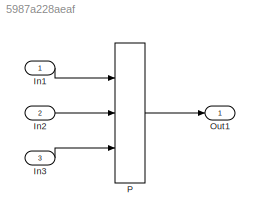
MODEL slx_5987a228aeaf
KIND model
CONFIG AbsTol = auto
CONFIG EnableMultiTasking = off
CONFIG FixedStep = auto
CONFIG MaxStep = auto
CONFIG MinStep = auto
CONFIG RelTol = 1e-3
CONFIG SampleTimeConstraint = Unconstrained
CONFIG Solver = FixedStepDiscrete
CONFIG SolverName = FixedStepDiscrete
CONFIG StartTime = 0.0
CONFIG StopTime = 10.0
BLOCK [Inport] In1
  IconDisplay = Port number
  OutMax = 2
BLOCK [Inport] In2
  IconDisplay = Port number
  OutMax = 5
  OutMin = 0
  Port = 2
BLOCK [Inport] In3
  IconDisplay = Port number
  Port = 3
  PortDimensions = [2 5]
BLOCK [Outport] Out1
  IconDisplay = Port number
BLOCK [Interpolation_n-D] P
  InputPortMap = u0,u1,p2
  IntermediateResultsDataTypeStr = Inherit: Inherit via internal rule
  InternalRulePriority = Speed
  InterpMethod = Flat
  NumSelectionDims = 2
  OutDataTypeStr = double
  Ports = [3, 1]
  RndMeth = Convergent
  TableSource = Input port
LINE In1:1 -> P:1
LINE In2:1 -> P:2
LINE In3:1 -> P:3
LINE P:1 -> Out1:1
